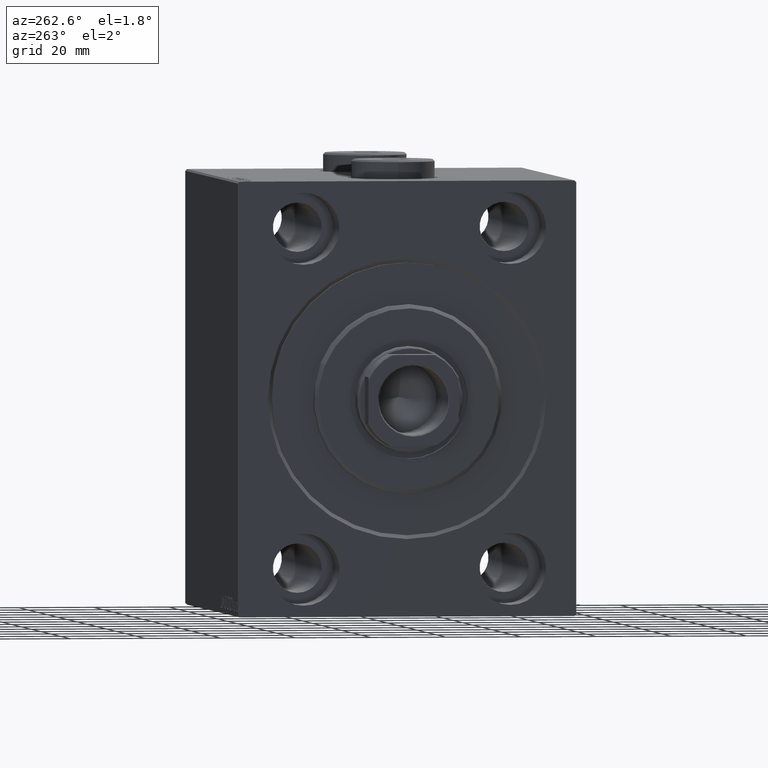
[diagram: clean part render]
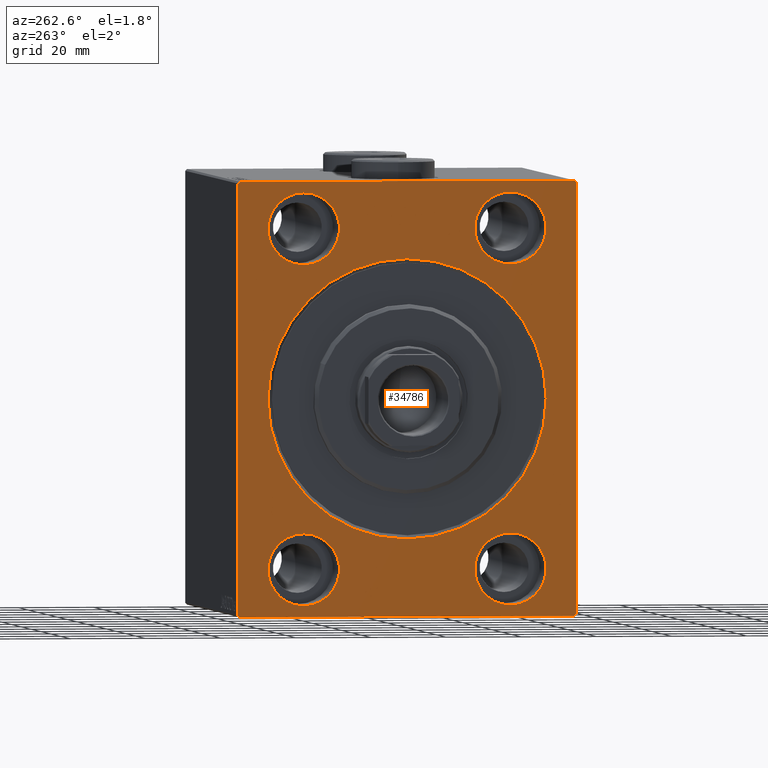
[diagram: same view with one face highlighted and labeled with its STEP entity id]
A machine part, auxiliary view. The second image highlights one B-rep face of the part: STEP entity #34786.
In plain terms, the highlighted planar face has unit normal (1, 0, 0).
Its self-contained STEP definition (entity closure, byte-faithful):
#183 = FACE_BOUND ( 'NONE', #13640, .T. ) ;
#788 = VECTOR ( 'NONE', #35326, 1000.000000000000000 ) ;
#893 = ORIENTED_EDGE ( 'NONE', *, *, #7968, .F. ) ;
#912 = CARTESIAN_POINT ( 'NONE',  ( 0.000000000000000000, -45.00000000000000000, 56.99999999999999289 ) ) ;
#952 = CARTESIAN_POINT ( 'NONE',  ( 0.000000000000000000, 27.50000000000001066, 35.50000000000000711 ) ) ;
#1192 = EDGE_CURVE ( 'NONE', #4826, #6864, #38761, .T. ) ;
#1277 = CARTESIAN_POINT ( 'NONE',  ( 0.000000000000000000, -44.49999999999997158, 57.49999999999999289 ) ) ;
#1527 = CARTESIAN_POINT ( 'NONE',  ( 0.000000000000000000, -27.50000000000000000, -35.49999999999998579 ) ) ;
#1630 = ORIENTED_EDGE ( 'NONE', *, *, #30757, .F. ) ;
#2072 = VERTEX_POINT ( 'NONE', #7823 ) ;
#2157 = VERTEX_POINT ( 'NONE', #36003 ) ;
#2310 = AXIS2_PLACEMENT_3D ( 'NONE', #18622, #32599, #15186 ) ;
#2888 = CARTESIAN_POINT ( 'NONE',  ( 0.000000000000000000, 45.00000000000000000, 57.50000000000000711 ) ) ;
#3075 = EDGE_CURVE ( 'NONE', #29906, #40095, #18385, .T. ) ;
#3108 = AXIS2_PLACEMENT_3D ( 'NONE', #17662, #7135, #20867 ) ;
#3636 = FACE_BOUND ( 'NONE', #12163, .T. ) ;
#3866 = DIRECTION ( 'NONE',  ( 0.000000000000000000, 0.000000000000000000, -1.000000000000000000 ) ) ;
#4252 = CARTESIAN_POINT ( 'NONE',  ( 0.000000000000000000, 0.000000000000000000, 0.000000000000000000 ) ) ;
#4826 = VERTEX_POINT ( 'NONE', #25336 ) ;
#4901 = CIRCLE ( 'NONE', #21022, 37.00000000000003553 ) ;
#5084 = CARTESIAN_POINT ( 'NONE',  ( 0.000000000000000000, -27.49999999999998934, 45.00000000000000711 ) ) ;
#5229 = DIRECTION ( 'NONE',  ( 0.000000000000000000, -1.206764157201257045E-16, 1.000000000000000000 ) ) ;
#5855 = VECTOR ( 'NONE', #23971, 1000.000000000000114 ) ;
#5866 = ORIENTED_EDGE ( 'NONE', *, *, #10689, .F. ) ;
#6138 = VECTOR ( 'NONE', #18692, 1000.000000000000114 ) ;
#6395 = DIRECTION ( 'NONE',  ( 0.000000000000000000, 0.000000000000000000, -1.000000000000000000 ) ) ;
#6610 = VERTEX_POINT ( 'NONE', #40281 ) ;
#6864 = VERTEX_POINT ( 'NONE', #30965 ) ;
#7135 = DIRECTION ( 'NONE',  ( -1.000000000000000000, 0.000000000000000000, 0.000000000000000000 ) ) ;
#7141 = AXIS2_PLACEMENT_3D ( 'NONE', #43595, #15625, #8308 ) ;
#7367 = CARTESIAN_POINT ( 'NONE',  ( 0.000000000000000000, -45.00000000000000000, -57.50000000000000711 ) ) ;
#7729 = LINE ( 'NONE', #35686, #6138 ) ;
#7823 = CARTESIAN_POINT ( 'NONE',  ( 0.000000000000000000, 45.00000000000001421, -57.00000000000003553 ) ) ;
#7968 = EDGE_CURVE ( 'NONE', #20350, #10598, #33190, .T. ) ;
#8308 = DIRECTION ( 'NONE',  ( 0.000000000000000000, 0.000000000000000000, 1.000000000000000000 ) ) ;
#8365 = ORIENTED_EDGE ( 'NONE', *, *, #3075, .F. ) ;
#8815 = CARTESIAN_POINT ( 'NONE',  ( 0.000000000000000000, 27.49999999999998934, -54.49999999999998579 ) ) ;
#9046 = CARTESIAN_POINT ( 'NONE',  ( 0.000000000000000000, 0.000000000000000000, 37.00000000000003553 ) ) ;
#9523 = VERTEX_POINT ( 'NONE', #1277 ) ;
#10000 = CARTESIAN_POINT ( 'NONE',  ( 0.000000000000000000, 44.50000000000002842, 57.50000000000000711 ) ) ;
#10021 = LINE ( 'NONE', #44176, #5855 ) ;
#10056 = FACE_BOUND ( 'NONE', #28140, .T. ) ;
#10598 = VERTEX_POINT ( 'NONE', #21418 ) ;
#10689 = EDGE_CURVE ( 'NONE', #17268, #25306, #20787, .T. ) ;
#10909 = DIRECTION ( 'NONE',  ( 1.000000000000000000, 0.000000000000000000, 0.000000000000000000 ) ) ;
#10970 = EDGE_LOOP ( 'NONE', ( #22481, #18886 ) ) ;
#11119 = DIRECTION ( 'NONE',  ( -1.000000000000000000, 0.000000000000000000, 0.000000000000000000 ) ) ;
#11264 = AXIS2_PLACEMENT_3D ( 'NONE', #27714, #13527, #34156 ) ;
#12163 = EDGE_LOOP ( 'NONE', ( #22099, #5866 ) ) ;
#12483 = ORIENTED_EDGE ( 'NONE', *, *, #17623, .F. ) ;
#12720 = VERTEX_POINT ( 'NONE', #14662 ) ;
#12962 = CARTESIAN_POINT ( 'NONE',  ( 0.000000000000000000, 27.49999999999998934, -35.49999999999998579 ) ) ;
#13527 = DIRECTION ( 'NONE',  ( -1.000000000000000000, 0.000000000000000000, 0.000000000000000000 ) ) ;
#13640 = EDGE_LOOP ( 'NONE', ( #8365, #12483 ) ) ;
#13715 = FACE_OUTER_BOUND ( 'NONE', #27913, .T. ) ;
#13875 = ORIENTED_EDGE ( 'NONE', *, *, #28998, .T. ) ;
#13986 = ORIENTED_EDGE ( 'NONE', *, *, #27821, .T. ) ;
#14662 = CARTESIAN_POINT ( 'NONE',  ( 0.000000000000000000, -45.00000000000000000, 56.99999999999999289 ) ) ;
#14774 = DIRECTION ( 'NONE',  ( 0.000000000000000000, 0.000000000000000000, -1.000000000000000000 ) ) ;
#15095 = VERTEX_POINT ( 'NONE', #10000 ) ;
#15186 = DIRECTION ( 'NONE',  ( 0.000000000000000000, 0.000000000000000000, 1.000000000000000000 ) ) ;
#15247 = EDGE_CURVE ( 'NONE', #24553, #26567, #44398, .T. ) ;
#15625 = DIRECTION ( 'NONE',  ( -1.000000000000000000, 0.000000000000000000, 0.000000000000000000 ) ) ;
#16253 = DIRECTION ( 'NONE',  ( 0.000000000000000000, 0.000000000000000000, 1.000000000000000000 ) ) ;
#16301 = ORIENTED_EDGE ( 'NONE', *, *, #28764, .F. ) ;
#16558 = AXIS2_PLACEMENT_3D ( 'NONE', #4252, #10909, #14774 ) ;
#16717 = CIRCLE ( 'NONE', #18884, 9.500000000000001776 ) ;
#16766 = LINE ( 'NONE', #30507, #19039 ) ;
#16801 = EDGE_CURVE ( 'NONE', #12720, #9523, #34863, .T. ) ;
#17165 = EDGE_CURVE ( 'NONE', #26567, #24553, #4901, .T. ) ;
#17268 = VERTEX_POINT ( 'NONE', #8815 ) ;
#17598 = FACE_BOUND ( 'NONE', #44509, .T. ) ;
#17601 = DIRECTION ( 'NONE',  ( 1.000000000000000000, 0.000000000000000000, 0.000000000000000000 ) ) ;
#17623 = EDGE_CURVE ( 'NONE', #40095, #29906, #42977, .T. ) ;
#17662 = CARTESIAN_POINT ( 'NONE',  ( 0.000000000000000000, -27.49999999999998934, 45.00000000000000711 ) ) ;
#18043 = EDGE_CURVE ( 'NONE', #10598, #20350, #34946, .T. ) ;
#18366 = VECTOR ( 'NONE', #33589, 1000.000000000000000 ) ;
#18385 = CIRCLE ( 'NONE', #2310, 9.500000000000001776 ) ;
#18599 = AXIS2_PLACEMENT_3D ( 'NONE', #34512, #11119, #24395 ) ;
#18622 = CARTESIAN_POINT ( 'NONE',  ( 0.000000000000000000, -27.50000000000000000, -44.99999999999998579 ) ) ;
#18692 = DIRECTION ( 'NONE',  ( -0.000000000000000000, 0.7071067811865474617, -0.7071067811865474617 ) ) ;
#18884 = AXIS2_PLACEMENT_3D ( 'NONE', #39016, #35588, #29352 ) ;
#18886 = ORIENTED_EDGE ( 'NONE', *, *, #17165, .T. ) ;
#19036 = DIRECTION ( 'NONE',  ( -1.000000000000000000, 0.000000000000000000, 0.000000000000000000 ) ) ;
#19039 = VECTOR ( 'NONE', #41295, 1000.000000000000000 ) ;
#20231 = CARTESIAN_POINT ( 'NONE',  ( 0.000000000000000000, -27.49999999999998934, 35.50000000000000711 ) ) ;
#20350 = VERTEX_POINT ( 'NONE', #952 ) ;
#20422 = EDGE_CURVE ( 'NONE', #25306, #17268, #16717, .T. ) ;
#20475 = ORIENTED_EDGE ( 'NONE', *, *, #1192, .F. ) ;
#20621 = VERTEX_POINT ( 'NONE', #31561 ) ;
#20787 = CIRCLE ( 'NONE', #18599, 9.500000000000001776 ) ;
#20801 = DIRECTION ( 'NONE',  ( 1.000000000000000000, 0.000000000000000000, 0.000000000000000000 ) ) ;
#20867 = DIRECTION ( 'NONE',  ( 0.000000000000000000, 0.000000000000000000, 1.000000000000000000 ) ) ;
#21022 = AXIS2_PLACEMENT_3D ( 'NONE', #35261, #17601, #3866 ) ;
#21226 = ORIENTED_EDGE ( 'NONE', *, *, #32881, .F. ) ;
#21418 = CARTESIAN_POINT ( 'NONE',  ( 0.000000000000000000, 27.50000000000001066, 54.50000000000000711 ) ) ;
#22099 = ORIENTED_EDGE ( 'NONE', *, *, #20422, .F. ) ;
#22481 = ORIENTED_EDGE ( 'NONE', *, *, #15247, .T. ) ;
#22768 = CIRCLE ( 'NONE', #24240, 9.500000000000001776 ) ;
#22776 = CARTESIAN_POINT ( 'NONE',  ( 0.000000000000000000, -27.50000000000000000, -54.49999999999998579 ) ) ;
#23971 = DIRECTION ( 'NONE',  ( -0.000000000000000000, -0.7071067811865474617, 0.7071067811865474617 ) ) ;
#24240 = AXIS2_PLACEMENT_3D ( 'NONE', #5084, #19036, #32131 ) ;
#24395 = DIRECTION ( 'NONE',  ( 0.000000000000000000, 0.000000000000000000, 1.000000000000000000 ) ) ;
#24553 = VERTEX_POINT ( 'NONE', #9046 ) ;
#24658 = ORIENTED_EDGE ( 'NONE', *, *, #33466, .F. ) ;
#24695 = CARTESIAN_POINT ( 'NONE',  ( 0.000000000000000000, 0.000000000000000000, 0.000000000000000000 ) ) ;
#25306 = VERTEX_POINT ( 'NONE', #12962 ) ;
#25336 = CARTESIAN_POINT ( 'NONE',  ( 0.000000000000000000, -44.50000000000002842, -57.50000000000000711 ) ) ;
#25880 = DIRECTION ( 'NONE',  ( 0.000000000000000000, -0.7071067811865474617, -0.7071067811865474617 ) ) ;
#26567 = VERTEX_POINT ( 'NONE', #41322 ) ;
#26852 = VECTOR ( 'NONE', #29307, 1000.000000000000114 ) ;
#27367 = VERTEX_POINT ( 'NONE', #20231 ) ;
#27714 = CARTESIAN_POINT ( 'NONE',  ( 0.000000000000000000, 27.50000000000001066, 45.00000000000000711 ) ) ;
#27821 = EDGE_CURVE ( 'NONE', #2072, #6864, #43546, .T. ) ;
#27913 = EDGE_LOOP ( 'NONE', ( #1630, #34759, #21226, #40805, #16301, #13986, #20475, #13875 ) ) ;
#28140 = EDGE_LOOP ( 'NONE', ( #37832, #24658 ) ) ;
#28764 = EDGE_CURVE ( 'NONE', #2072, #6610, #29271, .T. ) ;
#28998 = EDGE_CURVE ( 'NONE', #4826, #2157, #10021, .T. ) ;
#29271 = LINE ( 'NONE', #43945, #38794 ) ;
#29307 = DIRECTION ( 'NONE',  ( -0.000000000000000000, 0.7071067811865474617, 0.7071067811865474617 ) ) ;
#29352 = DIRECTION ( 'NONE',  ( 0.000000000000000000, 0.000000000000000000, 1.000000000000000000 ) ) ;
#29410 = CIRCLE ( 'NONE', #3108, 9.500000000000001776 ) ;
#29906 = VERTEX_POINT ( 'NONE', #1527 ) ;
#30507 = CARTESIAN_POINT ( 'NONE',  ( 0.000000000000000000, -45.00000000000000000, 57.49999999999999289 ) ) ;
#30757 = EDGE_CURVE ( 'NONE', #12720, #2157, #16766, .T. ) ;
#30965 = CARTESIAN_POINT ( 'NONE',  ( 0.000000000000000000, 44.50000000000001421, -57.50000000000000711 ) ) ;
#31423 = VECTOR ( 'NONE', #25880, 1000.000000000000114 ) ;
#31561 = CARTESIAN_POINT ( 'NONE',  ( 0.000000000000000000, -27.49999999999998934, 54.50000000000000711 ) ) ;
#32131 = DIRECTION ( 'NONE',  ( 0.000000000000000000, 0.000000000000000000, 1.000000000000000000 ) ) ;
#32599 = DIRECTION ( 'NONE',  ( -1.000000000000000000, 0.000000000000000000, 0.000000000000000000 ) ) ;
#32881 = EDGE_CURVE ( 'NONE', #15095, #9523, #37729, .T. ) ;
#32988 = CARTESIAN_POINT ( 'NONE',  ( 0.000000000000000000, 45.00000000000001421, -57.00000000000003553 ) ) ;
#33190 = CIRCLE ( 'NONE', #11264, 9.500000000000001776 ) ;
#33466 = EDGE_CURVE ( 'NONE', #27367, #20621, #22768, .T. ) ;
#33589 = DIRECTION ( 'NONE',  ( 0.000000000000000000, -1.000000000000000000, -1.541976423090495387E-16 ) ) ;
#33670 = CARTESIAN_POINT ( 'NONE',  ( 0.000000000000000000, 27.50000000000001066, 45.00000000000000711 ) ) ;
#34137 = DIRECTION ( 'NONE',  ( -1.000000000000000000, 0.000000000000000000, 0.000000000000000000 ) ) ;
#34156 = DIRECTION ( 'NONE',  ( 0.000000000000000000, 0.000000000000000000, 1.000000000000000000 ) ) ;
#34512 = CARTESIAN_POINT ( 'NONE',  ( 0.000000000000000000, 27.49999999999998934, -44.99999999999998579 ) ) ;
#34759 = ORIENTED_EDGE ( 'NONE', *, *, #16801, .T. ) ;
#34786 = ADVANCED_FACE ( 'NONE', ( #45106, #3636, #10056, #17598, #183, #13715 ), #35257, .F. ) ;
#34863 = LINE ( 'NONE', #912, #26852 ) ;
#34946 = CIRCLE ( 'NONE', #38611, 9.500000000000001776 ) ;
#35257 = PLANE ( 'NONE',  #41860 ) ;
#35261 = CARTESIAN_POINT ( 'NONE',  ( 0.000000000000000000, 0.000000000000000000, 0.000000000000000000 ) ) ;
#35326 = DIRECTION ( 'NONE',  ( 0.000000000000000000, 1.000000000000000000, 0.000000000000000000 ) ) ;
#35359 = EDGE_CURVE ( 'NONE', #20621, #27367, #29410, .T. ) ;
#35588 = DIRECTION ( 'NONE',  ( -1.000000000000000000, 0.000000000000000000, 0.000000000000000000 ) ) ;
#35686 = CARTESIAN_POINT ( 'NONE',  ( 0.000000000000000000, 44.50000000000002842, 57.50000000000000711 ) ) ;
#36003 = CARTESIAN_POINT ( 'NONE',  ( 0.000000000000000000, -45.00000000000000000, -57.00000000000003553 ) ) ;
#37729 = LINE ( 'NONE', #2888, #18366 ) ;
#37832 = ORIENTED_EDGE ( 'NONE', *, *, #35359, .F. ) ;
#38611 = AXIS2_PLACEMENT_3D ( 'NONE', #33670, #34137, #16253 ) ;
#38761 = LINE ( 'NONE', #7367, #788 ) ;
#38794 = VECTOR ( 'NONE', #5229, 1000.000000000000000 ) ;
#39016 = CARTESIAN_POINT ( 'NONE',  ( 0.000000000000000000, 27.49999999999998934, -44.99999999999998579 ) ) ;
#40095 = VERTEX_POINT ( 'NONE', #22776 ) ;
#40281 = CARTESIAN_POINT ( 'NONE',  ( 0.000000000000000000, 45.00000000000000000, 57.00000000000000711 ) ) ;
#40805 = ORIENTED_EDGE ( 'NONE', *, *, #41866, .T. ) ;
#41295 = DIRECTION ( 'NONE',  ( 0.000000000000000000, 0.000000000000000000, -1.000000000000000000 ) ) ;
#41322 = CARTESIAN_POINT ( 'NONE',  ( 0.000000000000000000, 4.531193156845210737E-15, -37.00000000000003553 ) ) ;
#41860 = AXIS2_PLACEMENT_3D ( 'NONE', #24695, #20801, #6395 ) ;
#41862 = ORIENTED_EDGE ( 'NONE', *, *, #18043, .F. ) ;
#41866 = EDGE_CURVE ( 'NONE', #15095, #6610, #7729, .T. ) ;
#42977 = CIRCLE ( 'NONE', #7141, 9.500000000000001776 ) ;
#43546 = LINE ( 'NONE', #32988, #31423 ) ;
#43595 = CARTESIAN_POINT ( 'NONE',  ( 0.000000000000000000, -27.50000000000000000, -44.99999999999998579 ) ) ;
#43945 = CARTESIAN_POINT ( 'NONE',  ( 0.000000000000000000, 45.00000000000001421, -57.50000000000000711 ) ) ;
#44176 = CARTESIAN_POINT ( 'NONE',  ( 0.000000000000000000, -44.50000000000002842, -57.50000000000000711 ) ) ;
#44398 = CIRCLE ( 'NONE', #16558, 37.00000000000003553 ) ;
#44509 = EDGE_LOOP ( 'NONE', ( #41862, #893 ) ) ;
#45106 = FACE_BOUND ( 'NONE', #10970, .T. ) ;